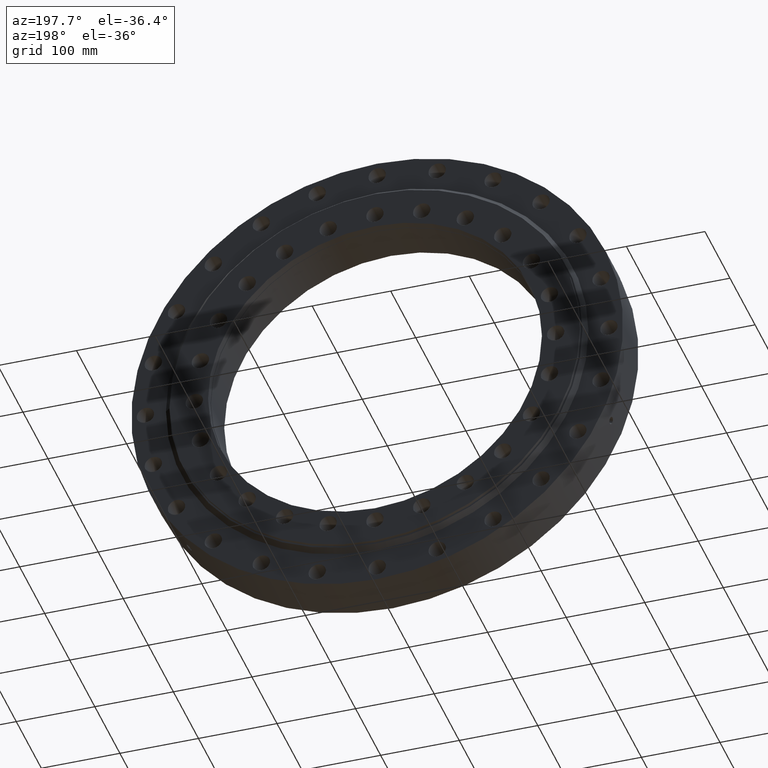
[diagram: clean part render]
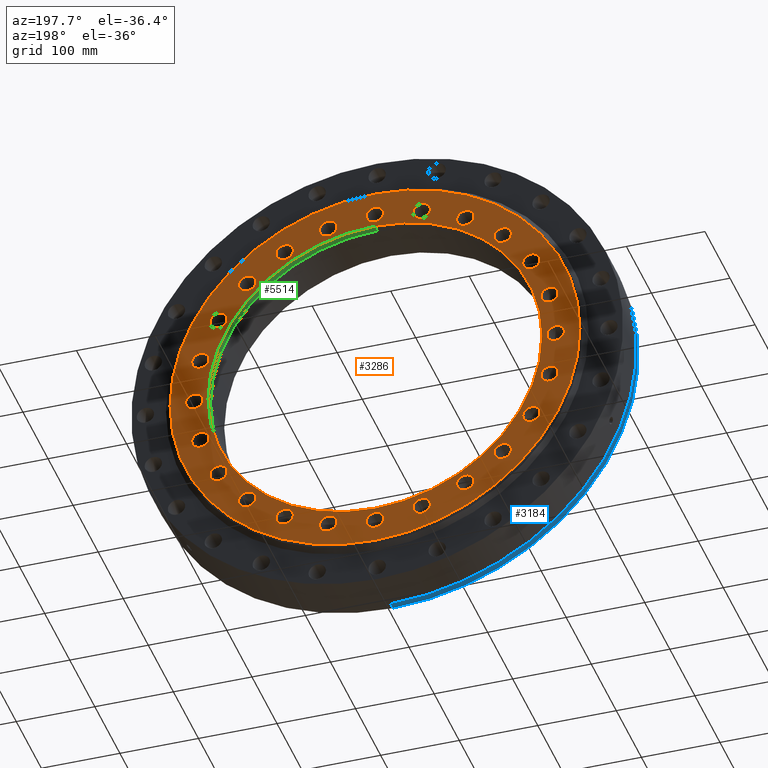
[diagram: same view with three faces highlighted in distinct colors, each labeled with its STEP entity id]
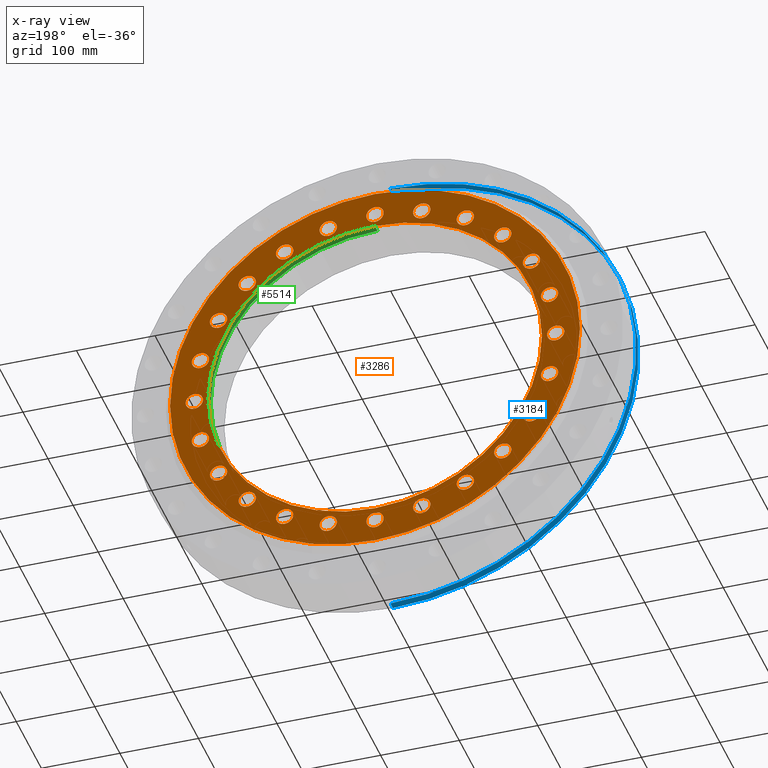
[diagram: x-ray of the same camera — body ghosted, the three highlighted faces saturated]
A machine part, auxiliary view with three faces highlighted in distinct colors.
The next image is the same camera in x-ray (body ghosted, the three faces saturated) — at least one of them is partly hidden behind the body in this view.
Their STEP definitions:

[orange] entity #3286 — the highlighted planar face has unit normal (0, -1, 0).
#19 = CARTESIAN_POINT ( 'NONE',  ( 59.52838037357999900, 35.99999999999995000, 233.1629400464856600 ) ) ;
#38 = DIRECTION ( 'NONE',  ( -3.081487911019577400E-033, 1.000000000000000000, -2.727064569436389100E-017 ) ) ;
#66 = CIRCLE ( 'NONE', #910, 11.00000000000001100 ) ;
#80 = CARTESIAN_POINT ( 'NONE',  ( 199.1858428704212300, 35.99999999999995000, 125.9999999999994700 ) ) ;
#91 = DIRECTION ( 'NONE',  ( 0.9659258262890655400, 0.0000000000000000000, 0.2588190451025311200 ) ) ;
#92 = CARTESIAN_POINT ( 'NONE',  ( 59.52838037357826600, 35.99999999999993600, -233.1629400464861400 ) ) ;
#110 = AXIS2_PLACEMENT_3D ( 'NONE', #4041, #4036, #4028 ) ;
#111 = EDGE_LOOP ( 'NONE', ( #1719, #1745 ) ) ;
#117 = AXIS2_PLACEMENT_3D ( 'NONE', #1116, #984, #966 ) ;
#126 = VERTEX_POINT ( 'NONE', #1045 ) ;
#136 = CIRCLE ( 'NONE', #5303, 10.99999999999999500 ) ;
#164 = EDGE_CURVE ( 'NONE', #5644, #2712, #2563, .T. ) ;
#201 = EDGE_CURVE ( 'NONE', #4900, #386, #5473, .T. ) ;
#215 = CARTESIAN_POINT ( 'NONE',  ( -59.52838037357672400, 35.99999999999995000, 211.1629400464865400 ) ) ;
#245 = EDGE_CURVE ( 'NONE', #742, #3469, #1107, .T. ) ;
#251 = DIRECTION ( 'NONE',  ( 0.0000000000000000000, 2.659471625126135400E-017, 1.000000000000000000 ) ) ;
#258 = DIRECTION ( 'NONE',  ( 0.2588190451025281800, 0.0000000000000000000, -0.9659258262890663100 ) ) ;
#262 = CARTESIAN_POINT ( 'NONE',  ( -230.0000000000000000, 35.99999999999994300, 2.498891047080922300E-012 ) ) ;
#267 = EDGE_CURVE ( 'NONE', #2480, #3821, #328, .T. ) ;
#282 = EDGE_CURVE ( 'NONE', #3821, #2480, #2193, .T. ) ;
#291 = FACE_BOUND ( 'NONE', #111, .T. ) ;
#297 = CIRCLE ( 'NONE', #5423, 11.00000000000001100 ) ;
#299 = EDGE_LOOP ( 'NONE', ( #5450, #5447 ) ) ;
#301 = CARTESIAN_POINT ( 'NONE',  ( 0.0000000000000000000, 35.99999999999995000, 260.9125000000000200 ) ) ;
#328 = CIRCLE ( 'NONE', #4304, 11.00000000000001600 ) ;
#336 = EDGE_CURVE ( 'NONE', #3976, #3315, #1274, .T. ) ;
#361 = DIRECTION ( 'NONE',  ( 9.244463733058732100E-033, 1.000000000000000000, -2.727064569436388400E-017 ) ) ;
#367 = EDGE_CURVE ( 'NONE', #1226, #3927, #1084, .T. ) ;
#382 = DIRECTION ( 'NONE',  ( -3.081487911019577400E-033, 1.000000000000000000, -2.727064569436389100E-017 ) ) ;
#386 = VERTEX_POINT ( 'NONE', #1454 ) ;
#391 = DIRECTION ( 'NONE',  ( -1.540743955509788700E-033, 1.000000000000000000, -2.727064569436389700E-017 ) ) ;
#397 = AXIS2_PLACEMENT_3D ( 'NONE', #1048, #38, #4315 ) ;
#405 = EDGE_CURVE ( 'NONE', #4596, #677, #1042, .T. ) ;
#427 = CIRCLE ( 'NONE', #911, 11.00000000000000000 ) ;
#446 = VERTEX_POINT ( 'NONE', #4251 ) ;
#447 = VERTEX_POINT ( 'NONE', #3285 ) ;
#467 = CIRCLE ( 'NONE', #872, 260.9125000000000200 ) ;
#472 = VERTEX_POINT ( 'NONE', #2174 ) ;
#479 = CIRCLE ( 'NONE', #1415, 11.00000000000000700 ) ;
#493 = EDGE_CURVE ( 'NONE', #3469, #742, #1566, .T. ) ;
#509 = EDGE_CURVE ( 'NONE', #4794, #964, #1031, .T. ) ;
#532 = DIRECTION ( 'NONE',  ( -0.4999999999999947300, 0.0000000000000000000, -0.8660254037844417100 ) ) ;
#560 = DIRECTION ( 'NONE',  ( -0.5000000000000007800, 0.0000000000000000000, 0.8660254037844382600 ) ) ;
#566 = CIRCLE ( 'NONE', #4738, 11.00000000000000400 ) ;
#571 = CARTESIAN_POINT ( 'NONE',  ( -114.9999999999973900, 35.99999999999995000, 199.1858428704223900 ) ) ;
#572 = EDGE_CURVE ( 'NONE', #1846, #4753, #2266, .T. ) ;
#588 = DIRECTION ( 'NONE',  ( -1.000000000000000000, 0.0000000000000000000, -3.491481338843147200E-015 ) ) ;
#596 = DIRECTION ( 'NONE',  ( -3.081487911019577400E-033, 1.000000000000000000, -2.727064569436389400E-017 ) ) ;
#598 = EDGE_CURVE ( 'NONE', #2137, #447, #566, .T. ) ;
#602 = DIRECTION ( 'NONE',  ( 1.540743955509788700E-033, 1.000000000000000000, -2.727064569436389700E-017 ) ) ;
#608 = VERTEX_POINT ( 'NONE', #3737 ) ;
#613 = CARTESIAN_POINT ( 'NONE',  ( 0.0000000000000000000, 35.99999999999994300, -1.827927008577010000E-015 ) ) ;
#621 = DIRECTION ( 'NONE',  ( 0.0000000000000000000, 2.659471625126135400E-017, 1.000000000000000000 ) ) ;
#640 = EDGE_CURVE ( 'NONE', #727, #1879, #3993, .T. ) ;
#645 = DIRECTION ( 'NONE',  ( -0.2588190451025210700, 0.0000000000000000000, 0.9659258262890680900 ) ) ;
#651 = CARTESIAN_POINT ( 'NONE',  ( 115.0000000000003100, 35.99999999999995000, 188.1858428704206900 ) ) ;
#654 = FACE_BOUND ( 'NONE', #1391, .T. ) ;
#659 = EDGE_CURVE ( 'NONE', #852, #3944, #5504, .T. ) ;
#674 = DIRECTION ( 'NONE',  ( -0.0000000000000000000, 1.000000000000000000, -2.727064569436389700E-017 ) ) ;
#676 = VERTEX_POINT ( 'NONE', #1636 ) ;
#677 = VERTEX_POINT ( 'NONE', #2889 ) ;
#683 = ORIENTED_EDGE ( 'NONE', *, *, #2929, .F. ) ;
#693 = EDGE_CURVE ( 'NONE', #472, #5487, #5847, .T. ) ;
#705 = CARTESIAN_POINT ( 'NONE',  ( 3.302913498259840300E-012, 35.99999999999995000, 230.0000000000000000 ) ) ;
#707 = DIRECTION ( 'NONE',  ( 0.0000000000000000000, 1.000000000000000000, -2.727064569436389700E-017 ) ) ;
#711 = DIRECTION ( 'NONE',  ( 0.0000000000000000000, 0.0000000000000000000, 1.000000000000000000 ) ) ;
#727 = VERTEX_POINT ( 'NONE', #80 ) ;
#728 = EDGE_CURVE ( 'NONE', #5539, #608, #1343, .T. ) ;
#736 = FACE_BOUND ( 'NONE', #1073, .T. ) ;
#742 = VERTEX_POINT ( 'NONE', #4934 ) ;
#744 = DIRECTION ( 'NONE',  ( -0.7071067811865486800, 0.0000000000000000000, 0.7071067811865462400 ) ) ;
#760 = CARTESIAN_POINT ( 'NONE',  ( 115.0000000000003100, 35.99999999999995000, 199.1858428704207100 ) ) ;
#764 = FACE_BOUND ( 'NONE', #1600, .T. ) ;
#771 = EDGE_CURVE ( 'NONE', #4381, #4236, #136, .T. ) ;
#779 = EDGE_CURVE ( 'NONE', #1898, #875, #1532, .T. ) ;
#785 = DIRECTION ( 'NONE',  ( -0.9659258262890688700, 0.0000000000000000000, 0.2588190451025181300 ) ) ;
#792 = CARTESIAN_POINT ( 'NONE',  ( -222.1629400464850300, 35.99999999999994300, 70.52838037358232300 ) ) ;
#802 = EDGE_CURVE ( 'NONE', #5209, #5096, #297, .T. ) ;
#803 = CARTESIAN_POINT ( 'NONE',  ( -222.1629400464850300, 35.99999999999994300, 59.52838037358232300 ) ) ;
#827 = AXIS2_PLACEMENT_3D ( 'NONE', #803, #2135, #785 ) ;
#834 = DIRECTION ( 'NONE',  ( 3.081487911019577400E-033, 1.000000000000000000, -2.727064569436389400E-017 ) ) ;
#848 = EDGE_CURVE ( 'NONE', #3822, #985, #1847, .T. ) ;
#852 = VERTEX_POINT ( 'NONE', #3480 ) ;
#856 = DIRECTION ( 'NONE',  ( 9.244463733058732100E-033, 1.000000000000000000, -2.727064569436389100E-017 ) ) ;
#863 = EDGE_LOOP ( 'NONE', ( #5529, #5695 ) ) ;
#872 = AXIS2_PLACEMENT_3D ( 'NONE', #613, #674, #621 ) ;
#875 = VERTEX_POINT ( 'NONE', #215 ) ;
#884 = DIRECTION ( 'NONE',  ( -2.189528850507526700E-047, 1.000000000000000000, -2.727064569436389100E-017 ) ) ;
#910 = AXIS2_PLACEMENT_3D ( 'NONE', #1299, #884, #2757 ) ;
#911 = AXIS2_PLACEMENT_3D ( 'NONE', #1890, #2773, #5147 ) ;
#921 = ORIENTED_EDGE ( 'NONE', *, *, #2916, .F. ) ;
#937 = DIRECTION ( 'NONE',  ( 0.0000000000000000000, 1.000000000000000000, -2.727064569436390300E-017 ) ) ;
#958 = CARTESIAN_POINT ( 'NONE',  ( 230.0000000000000000, 35.99999999999994300, 10.99999999999910600 ) ) ;
#964 = VERTEX_POINT ( 'NONE', #1529 ) ;
#966 = DIRECTION ( 'NONE',  ( 0.0000000000000000000, 0.0000000000000000000, 1.000000000000000000 ) ) ;
#971 = AXIS2_PLACEMENT_3D ( 'NONE', #5347, #5348, #5353 ) ;
#984 = DIRECTION ( 'NONE',  ( 0.0000000000000000000, 1.000000000000000000, -2.727064569436389700E-017 ) ) ;
#985 = VERTEX_POINT ( 'NONE', #3107 ) ;
#988 = EDGE_CURVE ( 'NONE', #1879, #727, #427, .T. ) ;
#1009 = ORIENTED_EDGE ( 'NONE', *, *, #2984, .F. ) ;
#1031 = CIRCLE ( 'NONE', #3983, 11.00000000000000000 ) ;
#1042 = CIRCLE ( 'NONE', #3885, 11.00000000000000500 ) ;
#1045 = CARTESIAN_POINT ( 'NONE',  ( 230.0000000000000000, 35.99999999999994300, -11.00000000000089700 ) ) ;
#1048 = CARTESIAN_POINT ( 'NONE',  ( 199.1858428704203200, 35.99999999999994300, -115.0000000000010200 ) ) ;
#1056 = DIRECTION ( 'NONE',  ( 0.4999999999999888400, 0.0000000000000000000, 0.8660254037844449200 ) ) ;
#1062 = CARTESIAN_POINT ( 'NONE',  ( -1.695484970912936700E-012, 35.99999999999993600, -241.0000000000000300 ) ) ;
#1073 = EDGE_LOOP ( 'NONE', ( #3719, #683 ) ) ;
#1084 = CIRCLE ( 'NONE', #3805, 11.00000000000000000 ) ;
#1086 = DIRECTION ( 'NONE',  ( 0.0000000000000000000, 1.000000000000000000, -2.727064569436389400E-017 ) ) ;
#1103 = EDGE_CURVE ( 'NONE', #875, #1898, #479, .T. ) ;
#1105 = DIRECTION ( 'NONE',  ( -0.8660254037844399300, 0.0000000000000000000, 0.4999999999999977200 ) ) ;
#1107 = CIRCLE ( 'NONE', #4372, 11.00000000000001600 ) ;
#1116 = CARTESIAN_POINT ( 'NONE',  ( 3.302913498259840300E-012, 35.99999999999995000, 230.0000000000000000 ) ) ;
#1117 = CARTESIAN_POINT ( 'NONE',  ( -199.1858428704195200, 35.99999999999995000, 104.0000000000024200 ) ) ;
#1134 = VERTEX_POINT ( 'NONE', #3591 ) ;
#1186 = DIRECTION ( 'NONE',  ( 1.540743955509788700E-033, 1.000000000000000000, -2.727064569436389100E-017 ) ) ;
#1191 = DIRECTION ( 'NONE',  ( 0.0000000000000000000, 1.000000000000000000, -2.727064569436389400E-017 ) ) ;
#1196 = DIRECTION ( 'NONE',  ( -1.540743955509788700E-033, 1.000000000000000000, -2.727064569436389700E-017 ) ) ;
#1200 = FACE_BOUND ( 'NONE', #4283, .T. ) ;
#1211 = EDGE_CURVE ( 'NONE', #3927, #1226, #4901, .T. ) ;
#1212 = DIRECTION ( 'NONE',  ( -1.540743955509788700E-033, 1.000000000000000000, -2.727064569436389100E-017 ) ) ;
#1226 = VERTEX_POINT ( 'NONE', #2265 ) ;
#1227 = EDGE_LOOP ( 'NONE', ( #5499, #5680 ) ) ;
#1249 = FACE_BOUND ( 'NONE', #1626, .T. ) ;
#1259 = CARTESIAN_POINT ( 'NONE',  ( 199.1858428704203200, 35.99999999999994300, -115.0000000000010200 ) ) ;
#1274 = CIRCLE ( 'NONE', #3777, 10.99999999999999300 ) ;
#1280 = DIRECTION ( 'NONE',  ( -1.540743955509788700E-033, 1.000000000000000000, -2.727064569436389100E-017 ) ) ;
#1290 = DIRECTION ( 'NONE',  ( 9.244463733058732100E-033, 1.000000000000000000, -2.727064569436389100E-017 ) ) ;
#1299 = CARTESIAN_POINT ( 'NONE',  ( -1.696832082391998900E-012, 35.99999999999993600, -230.0000000000000000 ) ) ;
#1331 = CIRCLE ( 'NONE', #3476, 10.99999999999999500 ) ;
#1343 = CIRCLE ( 'NONE', #5197, 11.00000000000000000 ) ;
#1355 = DIRECTION ( 'NONE',  ( -0.7071067811865438000, 0.0000000000000000000, -0.7071067811865513500 ) ) ;
#1380 = CARTESIAN_POINT ( 'NONE',  ( -115.0000000000016900, 35.99999999999993600, -199.1858428704199200 ) ) ;
#1391 = EDGE_LOOP ( 'NONE', ( #1741, #1619 ) ) ;
#1395 = FACE_BOUND ( 'NONE', #5145, .T. ) ;
#1415 = AXIS2_PLACEMENT_3D ( 'NONE', #2214, #4923, #645 ) ;
#1441 = CARTESIAN_POINT ( 'NONE',  ( 199.1858428704203200, 35.99999999999994300, -126.0000000000010200 ) ) ;
#1454 = CARTESIAN_POINT ( 'NONE',  ( -162.6345596729074100, 35.99999999999993600, -173.6345596729044900 ) ) ;
#1461 = EDGE_CURVE ( 'NONE', #386, #4900, #3627, .T. ) ;
#1505 = EDGE_CURVE ( 'NONE', #2943, #4523, #66, .T. ) ;
#1507 = DIRECTION ( 'NONE',  ( -1.540743955509788700E-033, 1.000000000000000000, -2.727064569436390000E-017 ) ) ;
#1527 = CARTESIAN_POINT ( 'NONE',  ( 0.0000000000000000000, 35.99999999999994300, -1.827927008577010000E-015 ) ) ;
#1529 = CARTESIAN_POINT ( 'NONE',  ( 162.6345596729050300, 35.99999999999993600, -151.6345596729068500 ) ) ;
#1530 = VERTEX_POINT ( 'NONE', #4416 ) ;
#1532 = CIRCLE ( 'NONE', #5351, 11.00000000000000700 ) ;
#1542 = CARTESIAN_POINT ( 'NONE',  ( 222.1629400464859400, 35.99999999999994300, 59.52838037357904000 ) ) ;
#1551 = CARTESIAN_POINT ( 'NONE',  ( 222.1629400464859400, 35.99999999999994300, 70.52838037357904000 ) ) ;
#1555 = DIRECTION ( 'NONE',  ( -0.2588190451025145200, 0.0000000000000000000, -0.9659258262890698700 ) ) ;
#1562 = CARTESIAN_POINT ( 'NONE',  ( 0.0000000000000000000, 35.99999999999994300, 0.0000000000000000000 ) ) ;
#1566 = CIRCLE ( 'NONE', #3953, 11.00000000000001600 ) ;
#1570 = DIRECTION ( 'NONE',  ( 0.0000000000000000000, -1.000000000000000000, 2.727064569436389700E-017 ) ) ;
#1576 = DIRECTION ( 'NONE',  ( 0.0000000000000000000, -3.265361837132814100E-017, -1.000000000000000000 ) ) ;
#1584 = ORIENTED_EDGE ( 'NONE', *, *, #3503, .F. ) ;
#1593 = EDGE_LOOP ( 'NONE', ( #5530, #5665 ) ) ;
#1599 = ORIENTED_EDGE ( 'NONE', *, *, #5494, .F. ) ;
#1600 = EDGE_LOOP ( 'NONE', ( #1584, #5436 ) ) ;
#1611 = EDGE_CURVE ( 'NONE', #2712, #5644, #4717, .T. ) ;
#1613 = DIRECTION ( 'NONE',  ( -0.0000000000000000000, 1.000000000000000000, -2.727064569436389700E-017 ) ) ;
#1618 = ORIENTED_EDGE ( 'NONE', *, *, #3195, .F. ) ;
#1619 = ORIENTED_EDGE ( 'NONE', *, *, #728, .F. ) ;
#1621 = ORIENTED_EDGE ( 'NONE', *, *, #245, .F. ) ;
#1626 = EDGE_LOOP ( 'NONE', ( #1621, #1648 ) ) ;
#1630 = ORIENTED_EDGE ( 'NONE', *, *, #1505, .F. ) ;
#1636 = CARTESIAN_POINT ( 'NONE',  ( 115.0000000000003100, 35.99999999999995000, 210.1858428704207100 ) ) ;
#1637 = CARTESIAN_POINT ( 'NONE',  ( 230.0000000000000000, 35.99999999999994300, -8.947731177030752200E-013 ) ) ;
#1640 = ORIENTED_EDGE ( 'NONE', *, *, #1611, .F. ) ;
#1643 = ORIENTED_EDGE ( 'NONE', *, *, #164, .F. ) ;
#1647 = DIRECTION ( 'NONE',  ( -3.081487911019577400E-033, 1.000000000000000000, -2.727064569436389700E-017 ) ) ;
#1648 = ORIENTED_EDGE ( 'NONE', *, *, #493, .F. ) ;
#1652 = ORIENTED_EDGE ( 'NONE', *, *, #2366, .F. ) ;
#1670 = ORIENTED_EDGE ( 'NONE', *, *, #201, .F. ) ;
#1680 = VERTEX_POINT ( 'NONE', #792 ) ;
#1688 = DIRECTION ( 'NONE',  ( 3.081487911019577400E-033, 1.000000000000000000, -2.727064569436389700E-017 ) ) ;
#1694 = DIRECTION ( 'NONE',  ( 1.000000000000000000, 0.0000000000000000000, 1.047444401652938900E-014 ) ) ;
#1701 = ORIENTED_EDGE ( 'NONE', *, *, #3306, .F. ) ;
#1702 = CARTESIAN_POINT ( 'NONE',  ( -162.6345596729039200, 35.99999999999995000, 173.6345596729080100 ) ) ;
#1709 = ORIENTED_EDGE ( 'NONE', *, *, #336, .F. ) ;
#1719 = ORIENTED_EDGE ( 'NONE', *, *, #3296, .F. ) ;
#1722 = ORIENTED_EDGE ( 'NONE', *, *, #509, .F. ) ;
#1741 = ORIENTED_EDGE ( 'NONE', *, *, #3139, .F. ) ;
#1745 = ORIENTED_EDGE ( 'NONE', *, *, #405, .F. ) ;
#1762 = CARTESIAN_POINT ( 'NONE',  ( 162.6345596729063100, 35.99999999999995000, 151.6345596729055700 ) ) ;
#1772 = DIRECTION ( 'NONE',  ( -0.2588190451025145200, 0.0000000000000000000, -0.9659258262890698700 ) ) ;
#1776 = EDGE_LOOP ( 'NONE', ( #5513, #5525 ) ) ;
#1782 = CIRCLE ( 'NONE', #5509, 11.00000000000002100 ) ;
#1785 = CARTESIAN_POINT ( 'NONE',  ( -59.52838037357672400, 35.99999999999995000, 233.1629400464865400 ) ) ;
#1828 = VERTEX_POINT ( 'NONE', #301 ) ;
#1846 = VERTEX_POINT ( 'NONE', #1854 ) ;
#1847 = CIRCLE ( 'NONE', #5561, 11.00000000000000500 ) ;
#1854 = CARTESIAN_POINT ( 'NONE',  ( -199.1858428704220800, 35.99999999999994300, -103.9999999999981000 ) ) ;
#1867 = AXIS2_PLACEMENT_3D ( 'NONE', #4156, #4575, #4218 ) ;
#1879 = VERTEX_POINT ( 'NONE', #2050 ) ;
#1885 = ORIENTED_EDGE ( 'NONE', *, *, #1461, .F. ) ;
#1890 = CARTESIAN_POINT ( 'NONE',  ( 199.1858428704212300, 35.99999999999995000, 114.9999999999994600 ) ) ;
#1898 = VERTEX_POINT ( 'NONE', #1785 ) ;
#1904 = FACE_BOUND ( 'NONE', #5750, .T. ) ;
#1911 = DIRECTION ( 'NONE',  ( 3.081487911019577400E-033, 1.000000000000000000, -2.727064569436389700E-017 ) ) ;
#1914 = EDGE_LOOP ( 'NONE', ( #5393, #4086 ) ) ;
#1927 = EDGE_LOOP ( 'NONE', ( #1701, #1722 ) ) ;
#1969 = AXIS2_PLACEMENT_3D ( 'NONE', #4770, #4729, #4725 ) ;
#2000 = VERTEX_POINT ( 'NONE', #651 ) ;
#2024 = EDGE_CURVE ( 'NONE', #1134, #4288, #5459, .T. ) ;
#2046 = ORIENTED_EDGE ( 'NONE', *, *, #3231, .F. ) ;
#2050 = CARTESIAN_POINT ( 'NONE',  ( 199.1858428704212300, 35.99999999999995000, 103.9999999999994700 ) ) ;
#2055 = AXIS2_PLACEMENT_3D ( 'NONE', #3783, #1191, #1355 ) ;
#2082 = ORIENTED_EDGE ( 'NONE', *, *, #802, .F. ) ;
#2085 = AXIS2_PLACEMENT_3D ( 'NONE', #3798, #2169, #5744 ) ;
#2090 = CARTESIAN_POINT ( 'NONE',  ( -162.6345596729039200, 35.99999999999995000, 162.6345596729079800 ) ) ;
#2098 = CARTESIAN_POINT ( 'NONE',  ( -114.9999999999973900, 35.99999999999995000, 188.1858428704223900 ) ) ;
#2127 = CARTESIAN_POINT ( 'NONE',  ( -59.52838037358154800, 35.99999999999993600, -222.1629400464852300 ) ) ;
#2135 = DIRECTION ( 'NONE',  ( 3.081487911019577400E-033, 1.000000000000000000, -2.727064569436389400E-017 ) ) ;
#2137 = VERTEX_POINT ( 'NONE', #1117 ) ;
#2143 = AXIS2_PLACEMENT_3D ( 'NONE', #4167, #4160, #3954 ) ;
#2150 = DIRECTION ( 'NONE',  ( 0.9659258262890708700, 0.0000000000000000000, -0.2588190451025110300 ) ) ;
#2169 = DIRECTION ( 'NONE',  ( -3.081487911019577400E-033, 1.000000000000000000, -2.727064569436389400E-017 ) ) ;
#2174 = CARTESIAN_POINT ( 'NONE',  ( 222.1629400464859400, 35.99999999999994300, 48.52838037357904000 ) ) ;
#2188 = ORIENTED_EDGE ( 'NONE', *, *, #267, .F. ) ;
#2189 = ORIENTED_EDGE ( 'NONE', *, *, #282, .F. ) ;
#2193 = CIRCLE ( 'NONE', #4216, 11.00000000000001600 ) ;
#2199 = ORIENTED_EDGE ( 'NONE', *, *, #4039, .F. ) ;
#2201 = CARTESIAN_POINT ( 'NONE',  ( 222.1629400464854600, 35.99999999999994300, -48.52838037358076700 ) ) ;
#2213 = EDGE_CURVE ( 'NONE', #2000, #676, #4759, .T. ) ;
#2214 = CARTESIAN_POINT ( 'NONE',  ( -59.52838037357672400, 35.99999999999995000, 222.1629400464865400 ) ) ;
#2215 = ORIENTED_EDGE ( 'NONE', *, *, #572, .F. ) ;
#2231 = FACE_BOUND ( 'NONE', #1227, .T. ) ;
#2250 = ORIENTED_EDGE ( 'NONE', *, *, #848, .F. ) ;
#2255 = ORIENTED_EDGE ( 'NONE', *, *, #3178, .F. ) ;
#2265 = CARTESIAN_POINT ( 'NONE',  ( 162.6345596729063100, 35.99999999999995000, 173.6345596729056000 ) ) ;
#2266 = CIRCLE ( 'NONE', #3633, 11.00000000000001600 ) ;
#2289 = CIRCLE ( 'NONE', #3730, 11.00000000000000000 ) ;
#2298 = FACE_BOUND ( 'NONE', #4405, .T. ) ;
#2305 = EDGE_CURVE ( 'NONE', #4288, #1134, #5234, .T. ) ;
#2323 = CIRCLE ( 'NONE', #5466, 212.4999999999999700 ) ;
#2364 = VERTEX_POINT ( 'NONE', #958 ) ;
#2366 = EDGE_CURVE ( 'NONE', #3315, #3976, #5160, .T. ) ;
#2394 = CIRCLE ( 'NONE', #3782, 11.00000000000001100 ) ;
#2406 = AXIS2_PLACEMENT_3D ( 'NONE', #4299, #3973, #3955 ) ;
#2425 = CARTESIAN_POINT ( 'NONE',  ( -222.1629400464863700, 35.99999999999994300, -48.52838037357749800 ) ) ;
#2431 = VERTEX_POINT ( 'NONE', #2098 ) ;
#2470 = CIRCLE ( 'NONE', #3433, 10.99999999999999800 ) ;
#2480 = VERTEX_POINT ( 'NONE', #2814 ) ;
#2498 = CARTESIAN_POINT ( 'NONE',  ( -222.1629400464863700, 35.99999999999994300, -59.52838037357749800 ) ) ;
#2519 = DIRECTION ( 'NONE',  ( 3.081487911019577400E-033, 1.000000000000000000, -2.727064569436389700E-017 ) ) ;
#2522 = CIRCLE ( 'NONE', #4459, 11.00000000000001100 ) ;
#2550 = CARTESIAN_POINT ( 'NONE',  ( -162.6345596729039200, 35.99999999999995000, 162.6345596729079800 ) ) ;
#2553 = CARTESIAN_POINT ( 'NONE',  ( 222.1629400464854600, 35.99999999999994300, -59.52838037358076700 ) ) ;
#2559 = FACE_BOUND ( 'NONE', #5597, .T. ) ;
#2563 = CIRCLE ( 'NONE', #3407, 11.00000000000001400 ) ;
#2590 = CIRCLE ( 'NONE', #5749, 10.99999999999999500 ) ;
#2598 = DIRECTION ( 'NONE',  ( 0.7071067811865525700, 0.0000000000000000000, -0.7071067811865424700 ) ) ;
#2618 = FACE_BOUND ( 'NONE', #299, .T. ) ;
#2629 = FACE_BOUND ( 'NONE', #1776, .T. ) ;
#2646 = FACE_OUTER_BOUND ( 'NONE', #863, .T. ) ;
#2648 = EDGE_CURVE ( 'NONE', #3944, #852, #1782, .T. ) ;
#2660 = FACE_BOUND ( 'NONE', #1593, .T. ) ;
#2670 = CIRCLE ( 'NONE', #3681, 11.00000000000000500 ) ;
#2696 = EDGE_CURVE ( 'NONE', #446, #2431, #1331, .T. ) ;
#2712 = VERTEX_POINT ( 'NONE', #2829 ) ;
#2716 = CIRCLE ( 'NONE', #4657, 11.00000000000001100 ) ;
#2724 = CARTESIAN_POINT ( 'NONE',  ( -59.52838037358154800, 35.99999999999993600, -222.1629400464852300 ) ) ;
#2755 = CIRCLE ( 'NONE', #3842, 260.9125000000000200 ) ;
#2757 = DIRECTION ( 'NONE',  ( 6.982962677686258800E-015, 0.0000000000000000000, -1.000000000000000000 ) ) ;
#2773 = DIRECTION ( 'NONE',  ( -3.081487911019577400E-033, 1.000000000000000000, -2.727064569436389700E-017 ) ) ;
#2780 = DIRECTION ( 'NONE',  ( 1.540743955509788700E-033, 1.000000000000000000, -2.727064569436389700E-017 ) ) ;
#2793 = DIRECTION ( 'NONE',  ( -3.081487911019577400E-033, 1.000000000000000000, -2.727064569436389700E-017 ) ) ;
#2801 = EDGE_CURVE ( 'NONE', #4801, #1828, #2755, .T. ) ;
#2806 = CARTESIAN_POINT ( 'NONE',  ( 222.1629400464859400, 35.99999999999994300, 59.52838037357904000 ) ) ;
#2814 = CARTESIAN_POINT ( 'NONE',  ( -222.1629400464863700, 35.99999999999994300, -70.52838037357750500 ) ) ;
#2822 = AXIS2_PLACEMENT_3D ( 'NONE', #1562, #1570, #1576 ) ;
#2823 = CARTESIAN_POINT ( 'NONE',  ( -114.9999999999973900, 35.99999999999995000, 199.1858428704223900 ) ) ;
#2827 = FACE_BOUND ( 'NONE', #4827, .T. ) ;
#2829 = CARTESIAN_POINT ( 'NONE',  ( -115.0000000000016900, 35.99999999999993600, -210.1858428704199500 ) ) ;
#2847 = DIRECTION ( 'NONE',  ( 0.4999999999999888400, 0.0000000000000000000, 0.8660254037844449200 ) ) ;
#2851 = CIRCLE ( 'NONE', #4215, 11.00000000000000900 ) ;
#2855 = DIRECTION ( 'NONE',  ( -0.5000000000000007800, 0.0000000000000000000, 0.8660254037844382600 ) ) ;
#2886 = EDGE_LOOP ( 'NONE', ( #5472, #5766 ) ) ;
#2889 = CARTESIAN_POINT ( 'NONE',  ( 114.9999999999987800, 35.99999999999993600, -188.1858428704216200 ) ) ;
#2913 = CIRCLE ( 'NONE', #2406, 11.00000000000000000 ) ;
#2916 = EDGE_CURVE ( 'NONE', #5096, #5209, #2522, .T. ) ;
#2920 = CARTESIAN_POINT ( 'NONE',  ( -199.1858428704220800, 35.99999999999994300, -114.9999999999981000 ) ) ;
#2929 = EDGE_CURVE ( 'NONE', #2431, #446, #2590, .T. ) ;
#2931 = EDGE_LOOP ( 'NONE', ( #2046, #1599 ) ) ;
#2943 = VERTEX_POINT ( 'NONE', #1062 ) ;
#2946 = FACE_BOUND ( 'NONE', #5004, .T. ) ;
#2960 = DIRECTION ( 'NONE',  ( 0.5000000000000065500, 0.0000000000000000000, -0.8660254037844348200 ) ) ;
#2964 = CARTESIAN_POINT ( 'NONE',  ( 115.0000000000003100, 35.99999999999995000, 199.1858428704207100 ) ) ;
#2968 = DIRECTION ( 'NONE',  ( -1.540743955509788700E-033, 1.000000000000000000, -2.727064569436389700E-017 ) ) ;
#2973 = DIRECTION ( 'NONE',  ( -0.9659258262890673100, 0.0000000000000000000, -0.2588190451025246300 ) ) ;
#2984 = EDGE_CURVE ( 'NONE', #1680, #1530, #4318, .T. ) ;
#2998 = CARTESIAN_POINT ( 'NONE',  ( -115.0000000000016900, 35.99999999999993600, -188.1858428704199200 ) ) ;
#3021 = EDGE_CURVE ( 'NONE', #447, #2137, #3323, .T. ) ;
#3090 = CARTESIAN_POINT ( 'NONE',  ( 3.302913498259840300E-012, 35.99999999999995000, 241.0000000000000300 ) ) ;
#3094 = AXIS2_PLACEMENT_3D ( 'NONE', #705, #707, #711 ) ;
#3107 = CARTESIAN_POINT ( 'NONE',  ( 222.1629400464854600, 35.99999999999994300, -70.52838037358076000 ) ) ;
#3115 = DIRECTION ( 'NONE',  ( -1.000000000000000000, 0.0000000000000000000, -3.491481338843147200E-015 ) ) ;
#3126 = CARTESIAN_POINT ( 'NONE',  ( -162.6345596729074100, 35.99999999999993600, -162.6345596729044600 ) ) ;
#3131 = EDGE_CURVE ( 'NONE', #1530, #1680, #2470, .T. ) ;
#3138 = VERTEX_POINT ( 'NONE', #4886 ) ;
#3139 = EDGE_CURVE ( 'NONE', #608, #5539, #2289, .T. ) ;
#3152 = DIRECTION ( 'NONE',  ( 0.7071067811865400200, 0.0000000000000000000, 0.7071067811865551200 ) ) ;
#3178 = EDGE_CURVE ( 'NONE', #985, #3822, #4567, .T. ) ;
#3183 = CARTESIAN_POINT ( 'NONE',  ( 0.0000000000000000000, 35.99999999999995000, 212.4999999999999700 ) ) ;
#3191 = DIRECTION ( 'NONE',  ( -0.7071067811865438000, 0.0000000000000000000, -0.7071067811865513500 ) ) ;
#3195 = EDGE_CURVE ( 'NONE', #4523, #2943, #2716, .T. ) ;
#3202 = ORIENTED_EDGE ( 'NONE', *, *, #3131, .F. ) ;
#3231 = EDGE_CURVE ( 'NONE', #2364, #126, #4660, .T. ) ;
#3261 = DIRECTION ( 'NONE',  ( 1.540743955509788700E-033, 1.000000000000000000, -2.727064569436389700E-017 ) ) ;
#3282 = CARTESIAN_POINT ( 'NONE',  ( -59.52838037358154800, 35.99999999999993600, -233.1629400464852300 ) ) ;
#3285 = CARTESIAN_POINT ( 'NONE',  ( -199.1858428704195200, 35.99999999999995000, 126.0000000000024200 ) ) ;
#3286 = ADVANCED_FACE ( 'NONE', ( #736, #4333, #4769, #3342, #2559, #1904, #4712, #1200, #5070, #1249, #3971, #654, #291, #3486, #4848, #1395, #5794, #764, #2827, #2618, #2946, #2629, #2298, #2231, #2660, #2646 ), #4238, .F. ) ;
#3296 = EDGE_CURVE ( 'NONE', #677, #4596, #4374, .T. ) ;
#3306 = EDGE_CURVE ( 'NONE', #964, #4794, #2913, .T. ) ;
#3315 = VERTEX_POINT ( 'NONE', #4146 ) ;
#3323 = CIRCLE ( 'NONE', #1969, 11.00000000000000400 ) ;
#3342 = FACE_BOUND ( 'NONE', #4453, .T. ) ;
#3392 = EDGE_LOOP ( 'NONE', ( #1618, #1630 ) ) ;
#3394 = DIRECTION ( 'NONE',  ( -0.8660254037844366000, 0.0000000000000000000, -0.5000000000000034400 ) ) ;
#3407 = AXIS2_PLACEMENT_3D ( 'NONE', #1380, #1507, #3623 ) ;
#3423 = CARTESIAN_POINT ( 'NONE',  ( 59.52838037357999900, 35.99999999999995000, 222.1629400464856600 ) ) ;
#3433 = AXIS2_PLACEMENT_3D ( 'NONE', #4907, #4805, #4829 ) ;
#3442 = AXIS2_PLACEMENT_3D ( 'NONE', #4066, #4734, #532 ) ;
#3469 = VERTEX_POINT ( 'NONE', #3282 ) ;
#3476 = AXIS2_PLACEMENT_3D ( 'NONE', #2823, #3261, #2855 ) ;
#3480 = CARTESIAN_POINT ( 'NONE',  ( -162.6345596729039200, 35.99999999999995000, 151.6345596729079800 ) ) ;
#3486 = FACE_BOUND ( 'NONE', #1927, .T. ) ;
#3503 = EDGE_CURVE ( 'NONE', #5487, #472, #2851, .T. ) ;
#3538 = EDGE_CURVE ( 'NONE', #3138, #3762, #2323, .T. ) ;
#3539 = CARTESIAN_POINT ( 'NONE',  ( 162.6345596729050300, 35.99999999999993600, -162.6345596729068500 ) ) ;
#3584 = CARTESIAN_POINT ( 'NONE',  ( -59.52838037357672400, 35.99999999999995000, 222.1629400464865400 ) ) ;
#3591 = CARTESIAN_POINT ( 'NONE',  ( 3.304260609738902500E-012, 35.99999999999995000, 219.0000000000000000 ) ) ;
#3618 = CARTESIAN_POINT ( 'NONE',  ( 162.6345596729063100, 35.99999999999995000, 162.6345596729055700 ) ) ;
#3623 = DIRECTION ( 'NONE',  ( -0.4999999999999947300, 0.0000000000000000000, -0.8660254037844417100 ) ) ;
#3627 = CIRCLE ( 'NONE', #2055, 11.00000000000002000 ) ;
#3633 = AXIS2_PLACEMENT_3D ( 'NONE', #2920, #361, #3394 ) ;
#3647 = CIRCLE ( 'NONE', #971, 11.00000000000001600 ) ;
#3649 = CARTESIAN_POINT ( 'NONE',  ( -199.1858428704195200, 35.99999999999995000, 115.0000000000024000 ) ) ;
#3664 = CIRCLE ( 'NONE', #4898, 10.99999999999999500 ) ;
#3681 = AXIS2_PLACEMENT_3D ( 'NONE', #2964, #2968, #2847 ) ;
#3714 = DIRECTION ( 'NONE',  ( 0.0000000000000000000, -3.265361837132814100E-017, -1.000000000000000000 ) ) ;
#3719 = ORIENTED_EDGE ( 'NONE', *, *, #2696, .F. ) ;
#3730 = AXIS2_PLACEMENT_3D ( 'NONE', #4811, #4988, #4981 ) ;
#3732 = DIRECTION ( 'NONE',  ( 0.0000000000000000000, -1.000000000000000000, 2.727064569436389700E-017 ) ) ;
#3737 = CARTESIAN_POINT ( 'NONE',  ( 59.52838037357826600, 35.99999999999993600, -211.1629400464861100 ) ) ;
#3738 = CARTESIAN_POINT ( 'NONE',  ( 0.0000000000000000000, 35.99999999999994300, 0.0000000000000000000 ) ) ;
#3747 = EDGE_LOOP ( 'NONE', ( #1643, #1640 ) ) ;
#3762 = VERTEX_POINT ( 'NONE', #3183 ) ;
#3777 = AXIS2_PLACEMENT_3D ( 'NONE', #1259, #382, #4681 ) ;
#3782 = AXIS2_PLACEMENT_3D ( 'NONE', #1637, #1647, #1694 ) ;
#3783 = CARTESIAN_POINT ( 'NONE',  ( -162.6345596729074100, 35.99999999999993600, -162.6345596729044600 ) ) ;
#3798 = CARTESIAN_POINT ( 'NONE',  ( 162.6345596729063100, 35.99999999999995000, 162.6345596729055700 ) ) ;
#3805 = AXIS2_PLACEMENT_3D ( 'NONE', #3618, #596, #3152 ) ;
#3821 = VERTEX_POINT ( 'NONE', #2425 ) ;
#3822 = VERTEX_POINT ( 'NONE', #2201 ) ;
#3839 = DIRECTION ( 'NONE',  ( 0.8660254037844326000, 0.0000000000000000000, 0.5000000000000105500 ) ) ;
#3842 = AXIS2_PLACEMENT_3D ( 'NONE', #1527, #1613, #251 ) ;
#3848 = DIRECTION ( 'NONE',  ( 0.9659258262890655400, 0.0000000000000000000, 0.2588190451025311200 ) ) ;
#3870 = CARTESIAN_POINT ( 'NONE',  ( -230.0000000000000000, 35.99999999999994300, 2.498891047080922300E-012 ) ) ;
#3882 = CARTESIAN_POINT ( 'NONE',  ( 59.52838037357826600, 35.99999999999993600, -222.1629400464861100 ) ) ;
#3885 = AXIS2_PLACEMENT_3D ( 'NONE', #4250, #1212, #2960 ) ;
#3888 = CARTESIAN_POINT ( 'NONE',  ( -222.1629400464863700, 35.99999999999994300, -59.52838037357749800 ) ) ;
#3909 = EDGE_LOOP ( 'NONE', ( #2215, #2199 ) ) ;
#3927 = VERTEX_POINT ( 'NONE', #1762 ) ;
#3944 = VERTEX_POINT ( 'NONE', #1702 ) ;
#3953 = AXIS2_PLACEMENT_3D ( 'NONE', #2724, #4409, #1772 ) ;
#3954 = DIRECTION ( 'NONE',  ( 0.5000000000000065500, 0.0000000000000000000, -0.8660254037844348200 ) ) ;
#3955 = DIRECTION ( 'NONE',  ( 0.7071067811865525700, 0.0000000000000000000, -0.7071067811865424700 ) ) ;
#3971 = FACE_BOUND ( 'NONE', #3392, .T. ) ;
#3973 = DIRECTION ( 'NONE',  ( 0.0000000000000000000, 1.000000000000000000, -2.727064569436390300E-017 ) ) ;
#3976 = VERTEX_POINT ( 'NONE', #1441 ) ;
#3983 = AXIS2_PLACEMENT_3D ( 'NONE', #3539, #937, #2598 ) ;
#3993 = CIRCLE ( 'NONE', #4929, 11.00000000000000000 ) ;
#4028 = DIRECTION ( 'NONE',  ( 1.000000000000000000, 0.0000000000000000000, 1.047444401652938900E-014 ) ) ;
#4036 = DIRECTION ( 'NONE',  ( -3.081487911019577400E-033, 1.000000000000000000, -2.727064569436389700E-017 ) ) ;
#4039 = EDGE_CURVE ( 'NONE', #4753, #1846, #3647, .T. ) ;
#4041 = CARTESIAN_POINT ( 'NONE',  ( 230.0000000000000000, 35.99999999999994300, -8.947731177030752200E-013 ) ) ;
#4066 = CARTESIAN_POINT ( 'NONE',  ( -115.0000000000016900, 35.99999999999993600, -199.1858428704199200 ) ) ;
#4086 = ORIENTED_EDGE ( 'NONE', *, *, #659, .F. ) ;
#4146 = CARTESIAN_POINT ( 'NONE',  ( 199.1858428704203200, 35.99999999999994300, -104.0000000000010200 ) ) ;
#4156 = CARTESIAN_POINT ( 'NONE',  ( 0.0000000000000000000, 35.99999999999995000, 260.9125000000000200 ) ) ;
#4160 = DIRECTION ( 'NONE',  ( -1.540743955509788700E-033, 1.000000000000000000, -2.727064569436389100E-017 ) ) ;
#4167 = CARTESIAN_POINT ( 'NONE',  ( 114.9999999999987800, 35.99999999999993600, -199.1858428704216200 ) ) ;
#4181 = DIRECTION ( 'NONE',  ( -3.081487911019577400E-033, 1.000000000000000000, -2.727064569436389700E-017 ) ) ;
#4192 = DIRECTION ( 'NONE',  ( 6.982962677686258800E-015, 0.0000000000000000000, -1.000000000000000000 ) ) ;
#4193 = CARTESIAN_POINT ( 'NONE',  ( 59.52838037357999900, 35.99999999999995000, 222.1629400464856600 ) ) ;
#4199 = DIRECTION ( 'NONE',  ( -2.189528850507526700E-047, 1.000000000000000000, -2.727064569436389100E-017 ) ) ;
#4203 = DIRECTION ( 'NONE',  ( -1.540743955509788700E-033, 1.000000000000000000, -2.727064569436389700E-017 ) ) ;
#4215 = AXIS2_PLACEMENT_3D ( 'NONE', #2806, #2793, #3848 ) ;
#4216 = AXIS2_PLACEMENT_3D ( 'NONE', #2498, #856, #5763 ) ;
#4218 = DIRECTION ( 'NONE',  ( 0.0000000000000000000, -2.727064569436389700E-017, -1.000000000000000000 ) ) ;
#4221 = CARTESIAN_POINT ( 'NONE',  ( 59.52838037357999900, 35.99999999999995000, 211.1629400464856300 ) ) ;
#4228 = DIRECTION ( 'NONE',  ( 0.2588190451025080800, 0.0000000000000000000, 0.9659258262890717500 ) ) ;
#4236 = VERTEX_POINT ( 'NONE', #19 ) ;
#4238 = PLANE ( 'NONE',  #1867 ) ;
#4250 = CARTESIAN_POINT ( 'NONE',  ( 114.9999999999987800, 35.99999999999993600, -199.1858428704216200 ) ) ;
#4251 = CARTESIAN_POINT ( 'NONE',  ( -114.9999999999973900, 35.99999999999995000, 210.1858428704224200 ) ) ;
#4283 = EDGE_LOOP ( 'NONE', ( #1670, #1885 ) ) ;
#4288 = VERTEX_POINT ( 'NONE', #3090 ) ;
#4299 = CARTESIAN_POINT ( 'NONE',  ( 162.6345596729050300, 35.99999999999993600, -162.6345596729068500 ) ) ;
#4304 = AXIS2_PLACEMENT_3D ( 'NONE', #3888, #1290, #2973 ) ;
#4315 = DIRECTION ( 'NONE',  ( 0.8660254037844433700, 0.0000000000000000000, -0.4999999999999919500 ) ) ;
#4318 = CIRCLE ( 'NONE', #827, 10.99999999999999800 ) ;
#4329 = AXIS2_PLACEMENT_3D ( 'NONE', #5058, #5050, #4747 ) ;
#4333 = FACE_BOUND ( 'NONE', #1914, .T. ) ;
#4372 = AXIS2_PLACEMENT_3D ( 'NONE', #2127, #1186, #1555 ) ;
#4374 = CIRCLE ( 'NONE', #2143, 11.00000000000000500 ) ;
#4381 = VERTEX_POINT ( 'NONE', #4221 ) ;
#4384 = AXIS2_PLACEMENT_3D ( 'NONE', #3126, #1086, #3191 ) ;
#4405 = EDGE_LOOP ( 'NONE', ( #5505, #5634 ) ) ;
#4409 = DIRECTION ( 'NONE',  ( 1.540743955509788700E-033, 1.000000000000000000, -2.727064569436389100E-017 ) ) ;
#4416 = CARTESIAN_POINT ( 'NONE',  ( -222.1629400464850300, 35.99999999999994300, 48.52838037358232300 ) ) ;
#4417 = CARTESIAN_POINT ( 'NONE',  ( -1.696832082391998900E-012, 35.99999999999993600, -219.0000000000000000 ) ) ;
#4453 = EDGE_LOOP ( 'NONE', ( #1009, #3202 ) ) ;
#4459 = AXIS2_PLACEMENT_3D ( 'NONE', #262, #4562, #588 ) ;
#4460 = DIRECTION ( 'NONE',  ( 0.2588190451025080800, 0.0000000000000000000, 0.9659258262890717500 ) ) ;
#4463 = CIRCLE ( 'NONE', #2822, 212.4999999999999700 ) ;
#4523 = VERTEX_POINT ( 'NONE', #4417 ) ;
#4562 = DIRECTION ( 'NONE',  ( 3.081487911019577400E-033, 1.000000000000000000, -2.727064569436389400E-017 ) ) ;
#4567 = CIRCLE ( 'NONE', #4329, 11.00000000000000500 ) ;
#4575 = DIRECTION ( 'NONE',  ( 0.0000000000000000000, -1.000000000000000000, 2.727064569436389700E-017 ) ) ;
#4580 = CARTESIAN_POINT ( 'NONE',  ( -1.696832082391998900E-012, 35.99999999999993600, -230.0000000000000000 ) ) ;
#4596 = VERTEX_POINT ( 'NONE', #5464 ) ;
#4635 = CARTESIAN_POINT ( 'NONE',  ( 199.1858428704212300, 35.99999999999995000, 114.9999999999994600 ) ) ;
#4656 = CARTESIAN_POINT ( 'NONE',  ( -162.6345596729074100, 35.99999999999993600, -151.6345596729044600 ) ) ;
#4657 = AXIS2_PLACEMENT_3D ( 'NONE', #4580, #4199, #4192 ) ;
#4660 = CIRCLE ( 'NONE', #110, 11.00000000000001100 ) ;
#4681 = DIRECTION ( 'NONE',  ( 0.8660254037844433700, 0.0000000000000000000, -0.4999999999999919500 ) ) ;
#4712 = FACE_BOUND ( 'NONE', #3909, .T. ) ;
#4717 = CIRCLE ( 'NONE', #3442, 11.00000000000001400 ) ;
#4725 = DIRECTION ( 'NONE',  ( -0.8660254037844399300, 0.0000000000000000000, 0.4999999999999977200 ) ) ;
#4729 = DIRECTION ( 'NONE',  ( 3.081487911019577400E-033, 1.000000000000000000, -2.727064569436389700E-017 ) ) ;
#4734 = DIRECTION ( 'NONE',  ( -1.540743955509788700E-033, 1.000000000000000000, -2.727064569436390000E-017 ) ) ;
#4738 = AXIS2_PLACEMENT_3D ( 'NONE', #3649, #1911, #1105 ) ;
#4747 = DIRECTION ( 'NONE',  ( 0.9659258262890708700, 0.0000000000000000000, -0.2588190451025110300 ) ) ;
#4753 = VERTEX_POINT ( 'NONE', #4774 ) ;
#4759 = CIRCLE ( 'NONE', #5517, 11.00000000000000500 ) ;
#4769 = FACE_BOUND ( 'NONE', #2886, .T. ) ;
#4770 = CARTESIAN_POINT ( 'NONE',  ( -199.1858428704195200, 35.99999999999995000, 115.0000000000024000 ) ) ;
#4774 = CARTESIAN_POINT ( 'NONE',  ( -199.1858428704220800, 35.99999999999994300, -125.9999999999980800 ) ) ;
#4794 = VERTEX_POINT ( 'NONE', #4861 ) ;
#4801 = VERTEX_POINT ( 'NONE', #4813 ) ;
#4805 = DIRECTION ( 'NONE',  ( 3.081487911019577400E-033, 1.000000000000000000, -2.727064569436389400E-017 ) ) ;
#4811 = CARTESIAN_POINT ( 'NONE',  ( 59.52838037357826600, 35.99999999999993600, -222.1629400464861100 ) ) ;
#4813 = CARTESIAN_POINT ( 'NONE',  ( 3.195256579825338400E-014, 35.99999999999993600, -260.9125000000000200 ) ) ;
#4827 = EDGE_LOOP ( 'NONE', ( #5429, #5421 ) ) ;
#4829 = DIRECTION ( 'NONE',  ( -0.9659258262890688700, 0.0000000000000000000, 0.2588190451025181300 ) ) ;
#4848 = FACE_BOUND ( 'NONE', #5219, .T. ) ;
#4861 = CARTESIAN_POINT ( 'NONE',  ( 162.6345596729050300, 35.99999999999993600, -173.6345596729068700 ) ) ;
#4886 = CARTESIAN_POINT ( 'NONE',  ( 2.602374448188125100E-014, 35.99999999999993600, -212.4999999999999700 ) ) ;
#4898 = AXIS2_PLACEMENT_3D ( 'NONE', #4193, #4203, #4228 ) ;
#4900 = VERTEX_POINT ( 'NONE', #4656 ) ;
#4901 = CIRCLE ( 'NONE', #2085, 11.00000000000000000 ) ;
#4907 = CARTESIAN_POINT ( 'NONE',  ( -222.1629400464850300, 35.99999999999994300, 59.52838037358232300 ) ) ;
#4923 = DIRECTION ( 'NONE',  ( 1.540743955509788700E-033, 1.000000000000000000, -2.727064569436389700E-017 ) ) ;
#4929 = AXIS2_PLACEMENT_3D ( 'NONE', #4635, #5691, #3839 ) ;
#4934 = CARTESIAN_POINT ( 'NONE',  ( -59.52838037358154800, 35.99999999999993600, -211.1629400464852300 ) ) ;
#4981 = DIRECTION ( 'NONE',  ( 0.2588190451025281800, 0.0000000000000000000, -0.9659258262890663100 ) ) ;
#4988 = DIRECTION ( 'NONE',  ( -1.540743955509788700E-033, 1.000000000000000000, -2.727064569436389100E-017 ) ) ;
#5004 = EDGE_LOOP ( 'NONE', ( #5440, #5546 ) ) ;
#5008 = AXIS2_PLACEMENT_3D ( 'NONE', #2090, #1688, #744 ) ;
#5050 = DIRECTION ( 'NONE',  ( -3.081487911019577400E-033, 1.000000000000000000, -2.727064569436389100E-017 ) ) ;
#5057 = AXIS2_PLACEMENT_3D ( 'NONE', #1542, #4181, #91 ) ;
#5058 = CARTESIAN_POINT ( 'NONE',  ( 222.1629400464854600, 35.99999999999994300, -59.52838037358076700 ) ) ;
#5070 = FACE_BOUND ( 'NONE', #3747, .T. ) ;
#5096 = VERTEX_POINT ( 'NONE', #5324 ) ;
#5145 = EDGE_LOOP ( 'NONE', ( #2250, #2255 ) ) ;
#5147 = DIRECTION ( 'NONE',  ( 0.8660254037844326000, 0.0000000000000000000, 0.5000000000000105500 ) ) ;
#5160 = CIRCLE ( 'NONE', #397, 10.99999999999999300 ) ;
#5197 = AXIS2_PLACEMENT_3D ( 'NONE', #3882, #1280, #258 ) ;
#5209 = VERTEX_POINT ( 'NONE', #5807 ) ;
#5219 = EDGE_LOOP ( 'NONE', ( #1652, #1709 ) ) ;
#5234 = CIRCLE ( 'NONE', #117, 11.00000000000001100 ) ;
#5287 = EDGE_CURVE ( 'NONE', #1828, #4801, #467, .T. ) ;
#5291 = DIRECTION ( 'NONE',  ( -3.081487911019577400E-033, 1.000000000000000000, -2.727064569436389100E-017 ) ) ;
#5303 = AXIS2_PLACEMENT_3D ( 'NONE', #3423, #391, #4460 ) ;
#5305 = DIRECTION ( 'NONE',  ( -0.7071067811865486800, 0.0000000000000000000, 0.7071067811865462400 ) ) ;
#5324 = CARTESIAN_POINT ( 'NONE',  ( -230.0000000000000000, 35.99999999999994300, 11.00000000000250100 ) ) ;
#5347 = CARTESIAN_POINT ( 'NONE',  ( -199.1858428704220800, 35.99999999999994300, -114.9999999999981000 ) ) ;
#5348 = DIRECTION ( 'NONE',  ( 9.244463733058732100E-033, 1.000000000000000000, -2.727064569436388400E-017 ) ) ;
#5351 = AXIS2_PLACEMENT_3D ( 'NONE', #3584, #2780, #5537 ) ;
#5353 = DIRECTION ( 'NONE',  ( -0.8660254037844366000, 0.0000000000000000000, -0.5000000000000034400 ) ) ;
#5393 = ORIENTED_EDGE ( 'NONE', *, *, #2648, .F. ) ;
#5421 = ORIENTED_EDGE ( 'NONE', *, *, #988, .F. ) ;
#5423 = AXIS2_PLACEMENT_3D ( 'NONE', #3870, #834, #3115 ) ;
#5429 = ORIENTED_EDGE ( 'NONE', *, *, #640, .F. ) ;
#5436 = ORIENTED_EDGE ( 'NONE', *, *, #693, .F. ) ;
#5440 = ORIENTED_EDGE ( 'NONE', *, *, #5625, .F. ) ;
#5447 = ORIENTED_EDGE ( 'NONE', *, *, #1211, .F. ) ;
#5450 = ORIENTED_EDGE ( 'NONE', *, *, #367, .F. ) ;
#5459 = CIRCLE ( 'NONE', #3094, 11.00000000000001100 ) ;
#5464 = CARTESIAN_POINT ( 'NONE',  ( 114.9999999999987800, 35.99999999999993600, -210.1858428704216200 ) ) ;
#5466 = AXIS2_PLACEMENT_3D ( 'NONE', #3738, #3732, #3714 ) ;
#5472 = ORIENTED_EDGE ( 'NONE', *, *, #3021, .F. ) ;
#5473 = CIRCLE ( 'NONE', #4384, 11.00000000000002000 ) ;
#5485 = EDGE_CURVE ( 'NONE', #3762, #3138, #4463, .T. ) ;
#5487 = VERTEX_POINT ( 'NONE', #1551 ) ;
#5494 = EDGE_CURVE ( 'NONE', #126, #2364, #2394, .T. ) ;
#5499 = ORIENTED_EDGE ( 'NONE', *, *, #2305, .F. ) ;
#5504 = CIRCLE ( 'NONE', #5008, 11.00000000000002100 ) ;
#5505 = ORIENTED_EDGE ( 'NONE', *, *, #779, .F. ) ;
#5509 = AXIS2_PLACEMENT_3D ( 'NONE', #2550, #2519, #5305 ) ;
#5513 = ORIENTED_EDGE ( 'NONE', *, *, #5736, .F. ) ;
#5517 = AXIS2_PLACEMENT_3D ( 'NONE', #760, #1196, #1056 ) ;
#5525 = ORIENTED_EDGE ( 'NONE', *, *, #771, .F. ) ;
#5529 = ORIENTED_EDGE ( 'NONE', *, *, #5287, .T. ) ;
#5530 = ORIENTED_EDGE ( 'NONE', *, *, #5485, .T. ) ;
#5537 = DIRECTION ( 'NONE',  ( -0.2588190451025210700, 0.0000000000000000000, 0.9659258262890680900 ) ) ;
#5539 = VERTEX_POINT ( 'NONE', #92 ) ;
#5546 = ORIENTED_EDGE ( 'NONE', *, *, #2213, .F. ) ;
#5561 = AXIS2_PLACEMENT_3D ( 'NONE', #2553, #5291, #2150 ) ;
#5597 = EDGE_LOOP ( 'NONE', ( #921, #2082 ) ) ;
#5625 = EDGE_CURVE ( 'NONE', #676, #2000, #2670, .T. ) ;
#5634 = ORIENTED_EDGE ( 'NONE', *, *, #1103, .F. ) ;
#5644 = VERTEX_POINT ( 'NONE', #2998 ) ;
#5665 = ORIENTED_EDGE ( 'NONE', *, *, #3538, .T. ) ;
#5680 = ORIENTED_EDGE ( 'NONE', *, *, #2024, .F. ) ;
#5691 = DIRECTION ( 'NONE',  ( -3.081487911019577400E-033, 1.000000000000000000, -2.727064569436389700E-017 ) ) ;
#5695 = ORIENTED_EDGE ( 'NONE', *, *, #2801, .T. ) ;
#5736 = EDGE_CURVE ( 'NONE', #4236, #4381, #3664, .T. ) ;
#5744 = DIRECTION ( 'NONE',  ( 0.7071067811865400200, 0.0000000000000000000, 0.7071067811865551200 ) ) ;
#5749 = AXIS2_PLACEMENT_3D ( 'NONE', #571, #602, #560 ) ;
#5750 = EDGE_LOOP ( 'NONE', ( #2189, #2188 ) ) ;
#5763 = DIRECTION ( 'NONE',  ( -0.9659258262890673100, 0.0000000000000000000, -0.2588190451025246300 ) ) ;
#5766 = ORIENTED_EDGE ( 'NONE', *, *, #598, .F. ) ;
#5794 = FACE_BOUND ( 'NONE', #2931, .T. ) ;
#5807 = CARTESIAN_POINT ( 'NONE',  ( -230.0000000000000000, 35.99999999999994300, -10.99999999999750100 ) ) ;
#5847 = CIRCLE ( 'NONE', #5057, 11.00000000000000900 ) ;

[blue] entity #3184 — the highlighted cylindrical surface (partial cylindrical patch) has radius 312.5 mm, axis along (-0, 1, -0).
#97 = CARTESIAN_POINT ( 'NONE',  ( 0.0000000000000000000, -35.99999999999999300, 312.5000000000000000 ) ) ;
#1376 = AXIS2_PLACEMENT_3D ( 'NONE', #4772, #4766, #4722 ) ;
#1711 = DIRECTION ( 'NONE',  ( 0.0000000000000000000, -1.000000000000000000, 0.0000000000000000000 ) ) ;
#1781 = DIRECTION ( 'NONE',  ( -0.0000000000000000000, 1.000000000000000000, -5.328613396463909800E-017 ) ) ;
#2129 = VERTEX_POINT ( 'NONE', #97 ) ;
#2464 = CARTESIAN_POINT ( 'NONE',  ( 0.0000000000000000000, -25.99999999999999300, 312.5000000000000000 ) ) ;
#2538 = CARTESIAN_POINT ( 'NONE',  ( 3.827021247335479100E-014, -26.00000000000002500, -312.5000000000000000 ) ) ;
#2892 = VERTEX_POINT ( 'NONE', #2464 ) ;
#2969 = ORIENTED_EDGE ( 'NONE', *, *, #4536, .F. ) ;
#2975 = ORIENTED_EDGE ( 'NONE', *, *, #4701, .F. ) ;
#3024 = ORIENTED_EDGE ( 'NONE', *, *, #4485, .T. ) ;
#3052 = ORIENTED_EDGE ( 'NONE', *, *, #4320, .F. ) ;
#3141 = CIRCLE ( 'NONE', #3817, 312.5000000000000000 ) ;
#3175 = DIRECTION ( 'NONE',  ( 0.0000000000000000000, 0.0000000000000000000, 1.000000000000000000 ) ) ;
#3184 = ADVANCED_FACE ( 'NONE', ( #4573 ), #4636, .T. ) ;
#3221 = LINE ( 'NONE', #3661, #3384 ) ;
#3260 = VERTEX_POINT ( 'NONE', #4268 ) ;
#3384 = VECTOR ( 'NONE', #3604, 1000.000000000000000 ) ;
#3440 = LINE ( 'NONE', #3592, #3473 ) ;
#3445 = CIRCLE ( 'NONE', #1376, 312.5000000000000000 ) ;
#3473 = VECTOR ( 'NONE', #1781, 1000.000000000000000 ) ;
#3592 = CARTESIAN_POINT ( 'NONE',  ( 3.827021247335479100E-014, 61.10955710955708000, -312.5000000000000000 ) ) ;
#3604 = DIRECTION ( 'NONE',  ( -0.0000000000000000000, 1.000000000000000000, -5.328613396463909800E-017 ) ) ;
#3661 = CARTESIAN_POINT ( 'NONE',  ( 0.0000000000000000000, 61.10955710955710900, 312.5000000000000000 ) ) ;
#3817 = AXIS2_PLACEMENT_3D ( 'NONE', #4212, #1711, #3175 ) ;
#3900 = VERTEX_POINT ( 'NONE', #2538 ) ;
#4212 = CARTESIAN_POINT ( 'NONE',  ( 0.0000000000000000000, -35.99999999999999300, -1.337991223932615400E-015 ) ) ;
#4268 = CARTESIAN_POINT ( 'NONE',  ( 3.827021247335479100E-014, -35.99999999999999300, -312.5000000000000000 ) ) ;
#4320 = EDGE_CURVE ( 'NONE', #3260, #3900, #3440, .T. ) ;
#4485 = EDGE_CURVE ( 'NONE', #2129, #2892, #3221, .T. ) ;
#4536 = EDGE_CURVE ( 'NONE', #2129, #3260, #3141, .T. ) ;
#4573 = FACE_OUTER_BOUND ( 'NONE', #4950, .T. ) ;
#4636 = CYLINDRICAL_SURFACE ( 'NONE', #5264, 312.5000000000000000 ) ;
#4701 = EDGE_CURVE ( 'NONE', #3900, #2892, #3445, .T. ) ;
#4722 = DIRECTION ( 'NONE',  ( 0.0000000000000000000, 5.551115123125782700E-017, 1.000000000000000000 ) ) ;
#4766 = DIRECTION ( 'NONE',  ( -0.0000000000000000000, 1.000000000000000000, -5.328613396463909800E-017 ) ) ;
#4772 = CARTESIAN_POINT ( 'NONE',  ( 0.0000000000000000000, -26.00000000000001100, -1.870852563579005500E-015 ) ) ;
#4812 = DIRECTION ( 'NONE',  ( -0.0000000000000000000, 1.000000000000000000, -5.328613396463909800E-017 ) ) ;
#4950 = EDGE_LOOP ( 'NONE', ( #3052, #2969, #3024, #2975 ) ) ;
#5001 = DIRECTION ( 'NONE',  ( 0.0000000000000000000, 4.440892098500626400E-017, 1.000000000000000000 ) ) ;
#5014 = CARTESIAN_POINT ( 'NONE',  ( 0.0000000000000000000, 61.10955710955709500, -6.512584093319245700E-015 ) ) ;
#5264 = AXIS2_PLACEMENT_3D ( 'NONE', #5014, #4812, #5001 ) ;

[green] entity #5514 — the highlighted cylindrical surface (partial cylindrical patch) has radius 212.5 mm, axis along (-0, 1, -0).
#25 = VERTEX_POINT ( 'NONE', #165 ) ;
#134 = EDGE_CURVE ( 'NONE', #969, #3762, #3828, .T. ) ;
#165 = CARTESIAN_POINT ( 'NONE',  ( 2.602374448188125100E-014, 25.99999999999993200, -212.4999999999999700 ) ) ;
#423 = DIRECTION ( 'NONE',  ( -0.0000000000000000000, 1.000000000000000000, -0.0000000000000000000 ) ) ;
#585 = DIRECTION ( 'NONE',  ( -0.0000000000000000000, 1.000000000000000000, -0.0000000000000000000 ) ) ;
#969 = VERTEX_POINT ( 'NONE', #5233 ) ;
#1002 = VECTOR ( 'NONE', #423, 1000.000000000000000 ) ;
#1484 = CARTESIAN_POINT ( 'NONE',  ( 2.602374448188125100E-014, 70.62343277129268400, -212.4999999999999700 ) ) ;
#1818 = DIRECTION ( 'NONE',  ( 0.0000000000000000000, 0.0000000000000000000, 1.000000000000000000 ) ) ;
#1871 = VECTOR ( 'NONE', #585, 1000.000000000000000 ) ;
#1877 = AXIS2_PLACEMENT_3D ( 'NONE', #1943, #4928, #1818 ) ;
#1943 = CARTESIAN_POINT ( 'NONE',  ( 0.0000000000000000000, 70.62343277129268400, 0.0000000000000000000 ) ) ;
#2107 = CIRCLE ( 'NONE', #3508, 212.4999999999999700 ) ;
#2267 = FACE_OUTER_BOUND ( 'NONE', #4334, .T. ) ;
#2323 = CIRCLE ( 'NONE', #5466, 212.4999999999999700 ) ;
#2741 = CARTESIAN_POINT ( 'NONE',  ( 0.0000000000000000000, 25.99999999999993200, 0.0000000000000000000 ) ) ;
#2824 = EDGE_CURVE ( 'NONE', #25, #3138, #4526, .T. ) ;
#2910 = DIRECTION ( 'NONE',  ( 0.0000000000000000000, 0.0000000000000000000, 1.000000000000000000 ) ) ;
#2918 = DIRECTION ( 'NONE',  ( -0.0000000000000000000, 1.000000000000000000, -0.0000000000000000000 ) ) ;
#3110 = CYLINDRICAL_SURFACE ( 'NONE', #1877, 212.4999999999999700 ) ;
#3138 = VERTEX_POINT ( 'NONE', #4886 ) ;
#3183 = CARTESIAN_POINT ( 'NONE',  ( 0.0000000000000000000, 35.99999999999995000, 212.4999999999999700 ) ) ;
#3508 = AXIS2_PLACEMENT_3D ( 'NONE', #2741, #2918, #2910 ) ;
#3538 = EDGE_CURVE ( 'NONE', #3138, #3762, #2323, .T. ) ;
#3688 = EDGE_CURVE ( 'NONE', #969, #25, #2107, .T. ) ;
#3714 = DIRECTION ( 'NONE',  ( 0.0000000000000000000, -3.265361837132814100E-017, -1.000000000000000000 ) ) ;
#3732 = DIRECTION ( 'NONE',  ( 0.0000000000000000000, -1.000000000000000000, 2.727064569436389700E-017 ) ) ;
#3738 = CARTESIAN_POINT ( 'NONE',  ( 0.0000000000000000000, 35.99999999999994300, 0.0000000000000000000 ) ) ;
#3762 = VERTEX_POINT ( 'NONE', #3183 ) ;
#3828 = LINE ( 'NONE', #5391, #1871 ) ;
#4334 = EDGE_LOOP ( 'NONE', ( #5699, #5759, #5742, #5773 ) ) ;
#4526 = LINE ( 'NONE', #1484, #1002 ) ;
#4886 = CARTESIAN_POINT ( 'NONE',  ( 2.602374448188125100E-014, 35.99999999999993600, -212.4999999999999700 ) ) ;
#4928 = DIRECTION ( 'NONE',  ( -0.0000000000000000000, 1.000000000000000000, -0.0000000000000000000 ) ) ;
#5233 = CARTESIAN_POINT ( 'NONE',  ( 0.0000000000000000000, 25.99999999999993200, 212.4999999999999700 ) ) ;
#5391 = CARTESIAN_POINT ( 'NONE',  ( 0.0000000000000000000, 70.62343277129268400, 212.4999999999999700 ) ) ;
#5466 = AXIS2_PLACEMENT_3D ( 'NONE', #3738, #3732, #3714 ) ;
#5514 = ADVANCED_FACE ( 'NONE', ( #2267 ), #3110, .F. ) ;
#5699 = ORIENTED_EDGE ( 'NONE', *, *, #2824, .F. ) ;
#5742 = ORIENTED_EDGE ( 'NONE', *, *, #134, .T. ) ;
#5759 = ORIENTED_EDGE ( 'NONE', *, *, #3688, .F. ) ;
#5773 = ORIENTED_EDGE ( 'NONE', *, *, #3538, .F. ) ;